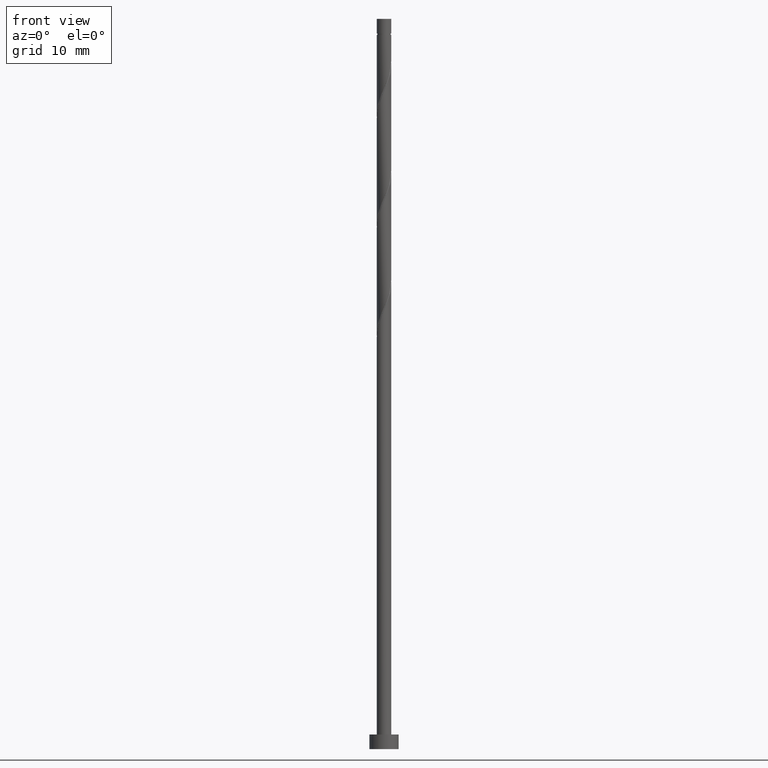
[diagram: clean part render]
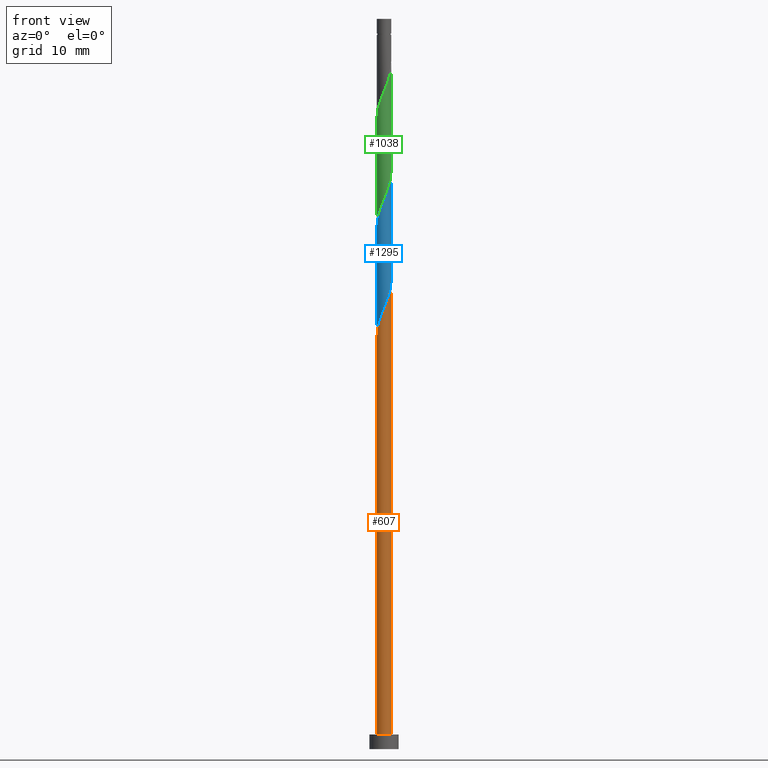
[diagram: same view with three faces highlighted in distinct colors, each labeled with its STEP entity id]
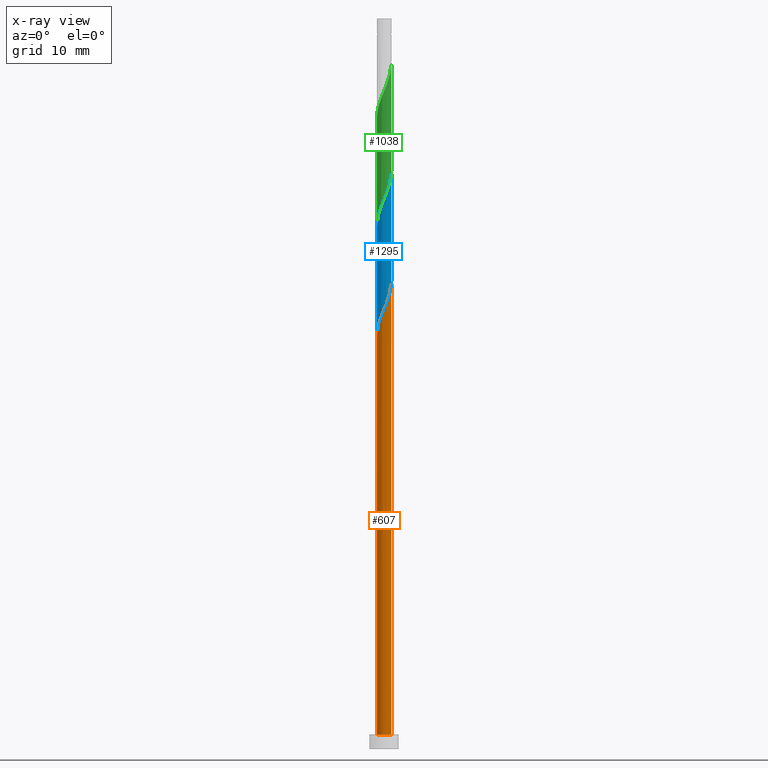
[diagram: x-ray of the same camera — body ghosted, the three highlighted faces saturated]
A machine part, front view with three faces highlighted in distinct colors.
The next image is the same camera in x-ray (body ghosted, the three faces saturated) — at least one of them is partly hidden behind the body in this view.
Their STEP definitions:

[orange] entity #607 — the highlighted cylindrical surface (edge-blend (fillet) strip) has radius 1 mm, axis along (-0, -0, -1).
#3 = CARTESIAN_POINT ( 'NONE',  ( -1.000000000000000000, 0.000000000000000000, 100.0000000000000000 ) ) ;
#44 = AXIS2_PLACEMENT_3D ( 'NONE', #1005, #1357, #780 ) ;
#46 = CARTESIAN_POINT ( 'NONE',  ( -0.9147317533455049388, -0.4408594147199554891, 57.38333333333333997 ) ) ;
#166 = CARTESIAN_POINT ( 'NONE',  ( 0.2753202675821132539, -0.9773893565945339645, 60.71666666666666856 ) ) ;
#175 = CARTESIAN_POINT ( 'NONE',  ( 0.9841041459904503741, -0.2502603323944278535, 63.21666666666666856 ) ) ;
#180 = VERTEX_POINT ( 'NONE', #524 ) ;
#182 = CARTESIAN_POINT ( 'NONE',  ( -0.07557042402773206380, -1.012610643405466249, 59.88333333333335418 ) ) ;
#234 = ORIENTED_EDGE ( 'NONE', *, *, #1203, .T. ) ;
#288 = CARTESIAN_POINT ( 'NONE',  ( -0.2464583156134444175, -0.9691533927428536144, 59.46666666666667567 ) ) ;
#336 = DIRECTION ( 'NONE',  ( -0.000000000000000000, -0.000000000000000000, -1.000000000000000000 ) ) ;
#359 = LINE ( 'NONE', #452, #816 ) ;
#372 = CARTESIAN_POINT ( 'NONE',  ( -0.8117578158769209740, -0.5839942194600308278, 57.80000000000000426 ) ) ;
#403 = ORIENTED_EDGE ( 'NONE', *, *, #1021, .F. ) ;
#441 = ORIENTED_EDGE ( 'NONE', *, *, #1466, .F. ) ;
#452 = CARTESIAN_POINT ( 'NONE',  ( 1.000000000000000000, 1.224646799147353207E-16, 100.0000000000000000 ) ) ;
#500 = CARTESIAN_POINT ( 'NONE',  ( 0.9972268124083832896, -0.07442233948093021634, 63.63333333333334707 ) ) ;
#512 = CARTESIAN_POINT ( 'NONE',  ( 0.9116327376541116800, -0.4110057805399693898, 62.79999999999999716 ) ) ;
#524 = CARTESIAN_POINT ( 'NONE',  ( 1.000000000000000000, 7.866774965686214893E-17, 63.81035135352636445 ) ) ;
#595 = VERTEX_POINT ( 'NONE', #653 ) ;
#607 = ADVANCED_FACE ( 'NONE', ( #783 ), #1343, .T. ) ;
#610 = CARTESIAN_POINT ( 'NONE',  ( 1.000000000000000000, 1.224646799147353207E-16, 2.000000000000000000 ) ) ;
#624 = CARTESIAN_POINT ( 'NONE',  ( 0.4341617696046363717, -0.9008349226211040950, 61.13333333333334707 ) ) ;
#634 = CARTESIAN_POINT ( 'NONE',  ( 0.5930032716271590454, -0.8242804886476744475, 61.55000000000001137 ) ) ;
#653 = CARTESIAN_POINT ( 'NONE',  ( -1.000000000000000000, 0.000000000000000000, 2.000000000000000000 ) ) ;
#712 = ORIENTED_EDGE ( 'NONE', *, *, #715, .T. ) ;
#715 = EDGE_CURVE ( 'NONE', #1293, #595, #1025, .T. ) ;
#742 = CARTESIAN_POINT ( 'NONE',  ( 0.09987492177719080322, -0.9949999999999999956, 60.30000000000000426 ) ) ;
#745 = VERTEX_POINT ( 'NONE', #610 ) ;
#780 = DIRECTION ( 'NONE',  ( 1.000000000000000000, 0.000000000000000000, 0.000000000000000000 ) ) ;
#783 = FACE_OUTER_BOUND ( 'NONE', #1328, .T. ) ;
#816 = VECTOR ( 'NONE', #336, 1000.000000000000000 ) ;
#849 = CARTESIAN_POINT ( 'NONE',  ( -0.9999999999999988898, -0.1381563937346808602, 56.64019839831190950 ) ) ;
#865 = CARTESIAN_POINT ( 'NONE',  ( 0.000000000000000000, 0.000000000000000000, 100.0000000000000000 ) ) ;
#881 = CIRCLE ( 'NONE', #44, 1.000000000000000000 ) ;
#957 = CARTESIAN_POINT ( 'NONE',  ( 1.000000000000000000, 7.866774965686214893E-17, 63.81035135352636445 ) ) ;
#962 = CARTESIAN_POINT ( 'NONE',  ( -0.5630650428037469180, -0.8264125831401736288, 58.63333333333333286 ) ) ;
#965 = CARTESIAN_POINT ( 'NONE',  ( 1.000000000000000444, -0.03726283816066764537, 63.72138669025336100 ) ) ;
#989 = DIRECTION ( 'NONE',  ( -0.000000000000000000, -0.000000000000000000, -1.000000000000000000 ) ) ;
#1005 = CARTESIAN_POINT ( 'NONE',  ( 0.000000000000000000, 0.000000000000000000, 2.000000000000000000 ) ) ;
#1021 = EDGE_CURVE ( 'NONE', #1293, #180, #1086, .T. ) ;
#1025 = LINE ( 'NONE', #3, #1435 ) ;
#1077 = CARTESIAN_POINT ( 'NONE',  ( 0.8391613293177730970, -0.5717512286855108705, 62.38333333333333997 ) ) ;
#1086 =( BOUNDED_CURVE ( )  B_SPLINE_CURVE ( 2, ( #1216, #849, #1307, #46, #372, #1189, #962, #1317, #288, #182, #742, #166, #624, #634, #1212, #1077, #512, #175, #500, #965, #957 ),
 .UNSPECIFIED., .F., .T. ) 
 B_SPLINE_CURVE_WITH_KNOTS ( ( 3, 2, 2, 2, 2, 2, 2, 2, 2, 2, 3 ),
 ( 0.05852626155789682205, 0.06944444444444441977, 0.08333333333333337034, 0.09722222222222220989, 0.1111111111111111605, 0.1250000000000000000, 0.1388888888888888395, 0.1527777777777777901, 0.1666666666666666297, 0.1805555555555555802, 0.1835262615578969192 ),
 .UNSPECIFIED. ) 
 CURVE ( )  GEOMETRIC_REPRESENTATION_ITEM ( )  RATIONAL_B_SPLINE_CURVE ( ( 0.9475153373969229520, 0.9410068908218436334, 0.9523809523809509958, 0.9379121457259110839, 0.9523809523809509958, 0.9379121457259110839, 0.9523809523809509958, 0.9379121457259110839, 0.9523809523809509958, 0.9379121457259110839, 0.9523809523809509958, 0.9379121457259110839, 0.9523809523809509958, 0.9379121457259110839, 0.9523809523809509958, 0.9379121457259110839, 0.9523809523809509958, 0.9379121457259110839, 0.9523809523809509958, 0.9492862072850182242, 0.9475153373969227300 ) ) 
 REPRESENTATION_ITEM ( '' )  );
#1113 = DIRECTION ( 'NONE',  ( -1.000000000000000000, 0.000000000000000000, 0.000000000000000000 ) ) ;
#1123 = DIRECTION ( 'NONE',  ( -0.000000000000000000, -0.000000000000000000, -1.000000000000000000 ) ) ;
#1176 = AXIS2_PLACEMENT_3D ( 'NONE', #865, #1123, #1113 ) ;
#1189 = CARTESIAN_POINT ( 'NONE',  ( -0.7087838784083370092, -0.7271290242001063886, 58.21666666666666856 ) ) ;
#1203 = EDGE_CURVE ( 'NONE', #595, #745, #881, .T. ) ;
#1212 = CARTESIAN_POINT ( 'NONE',  ( 0.7160823004724661267, -0.6980158586665925480, 61.96666666666666856 ) ) ;
#1216 = CARTESIAN_POINT ( 'NONE',  ( -0.9999999999999997780, -8.453207281310098825E-15, 56.31035135352637155 ) ) ;
#1265 = CARTESIAN_POINT ( 'NONE',  ( -0.9999999999999997780, -8.453207281310098825E-15, 56.31035135352637155 ) ) ;
#1293 = VERTEX_POINT ( 'NONE', #1265 ) ;
#1307 = CARTESIAN_POINT ( 'NONE',  ( -0.9625406160859104610, -0.2711375340762611774, 56.96666666666668277 ) ) ;
#1317 = CARTESIAN_POINT ( 'NONE',  ( -0.4173462071991567157, -0.9256961420802413132, 59.05000000000000426 ) ) ;
#1328 = EDGE_LOOP ( 'NONE', ( #441, #403, #712, #234 ) ) ;
#1343 = CYLINDRICAL_SURFACE ( 'NONE', #1176, 1.000000000000000000 ) ;
#1357 = DIRECTION ( 'NONE',  ( 0.000000000000000000, 0.000000000000000000, 1.000000000000000000 ) ) ;
#1435 = VECTOR ( 'NONE', #989, 1000.000000000000000 ) ;
#1466 = EDGE_CURVE ( 'NONE', #180, #745, #359, .T. ) ;

[blue] entity #1295 — the highlighted cylindrical surface (edge-blend (fillet) strip) has radius 1 mm, axis along (-0, -0, -1).
#11 = CARTESIAN_POINT ( 'NONE',  ( 0.9841041459904503741, -0.2502603323944278535, 78.21666666666668277 ) ) ;
#67 =( BOUNDED_CURVE ( )  B_SPLINE_CURVE ( 2, ( #1392, #482, #936, #1401, #262, #991, #860, #1324, #194, #875, #213, #664, #751, #1124, #184, #982, #1334, #11, #124, #1017, #1376 ),
 .UNSPECIFIED., .F., .T. ) 
 B_SPLINE_CURVE_WITH_KNOTS ( ( 3, 2, 2, 2, 2, 2, 2, 2, 2, 2, 3 ),
 ( 0.3085262615578962531, 0.3194444444444444198, 0.3333333333333333703, 0.3472222222222222099, 0.3611111111111111605, 0.3750000000000000000, 0.3888888888888888395, 0.4027777777777777901, 0.4166666666666666297, 0.4305555555555555802, 0.4335262615578967527 ),
 .UNSPECIFIED. ) 
 CURVE ( )  GEOMETRIC_REPRESENTATION_ITEM ( )  RATIONAL_B_SPLINE_CURVE ( ( 0.9475153373969236181, 0.9410068908218430783, 0.9523809523809509958, 0.9379121457259110839, 0.9523809523809509958, 0.9379121457259110839, 0.9523809523809509958, 0.9379121457259110839, 0.9523809523809509958, 0.9379121457259110839, 0.9523809523809509958, 0.9379121457259110839, 0.9523809523809509958, 0.9379121457259110839, 0.9523809523809509958, 0.9379121457259110839, 0.9523809523809509958, 0.9379121457259110839, 0.9523809523809509958, 0.9492862072850184463, 0.9475153373969230630 ) ) 
 REPRESENTATION_ITEM ( '' )  );
#78 = CARTESIAN_POINT ( 'NONE',  ( -0.09987492177719106690, -0.9949999999999999956, 60.30000000000000426 ) ) ;
#95 = CARTESIAN_POINT ( 'NONE',  ( -0.4341617696046366492, -0.9008349226211040950, 59.46666666666667567 ) ) ;
#124 = CARTESIAN_POINT ( 'NONE',  ( 0.9972268124083832896, -0.07442233948093021634, 78.63333333333332575 ) ) ;
#184 = CARTESIAN_POINT ( 'NONE',  ( 0.7160823004724661267, -0.6980158586665925480, 76.96666666666669698 ) ) ;
#189 = CARTESIAN_POINT ( 'NONE',  ( -0.7160823004724664598, -0.6980158586665924370, 58.63333333333332575 ) ) ;
#194 = CARTESIAN_POINT ( 'NONE',  ( -0.2464583156134444175, -0.9691533927428536144, 74.46666666666666856 ) ) ;
#209 = CARTESIAN_POINT ( 'NONE',  ( -0.9116327376541120131, -0.4110057805399687791, 57.80000000000000426 ) ) ;
#213 = CARTESIAN_POINT ( 'NONE',  ( 0.09987492177719080322, -0.9949999999999999956, 75.30000000000003979 ) ) ;
#235 = CARTESIAN_POINT ( 'NONE',  ( 1.000000000000000000, 1.224646799147353207E-16, 100.0000000000000000 ) ) ;
#262 = CARTESIAN_POINT ( 'NONE',  ( -0.8117578158769209740, -0.5839942194600308278, 72.80000000000002558 ) ) ;
#306 = CARTESIAN_POINT ( 'NONE',  ( -0.5930032716271594895, -0.8242804886476744475, 59.04999999999999005 ) ) ;
#313 = CARTESIAN_POINT ( 'NONE',  ( -0.8391613293177733190, -0.5717512286855107595, 58.21666666666667567 ) ) ;
#343 = DIRECTION ( 'NONE',  ( -0.000000000000000000, -0.000000000000000000, -1.000000000000000000 ) ) ;
#389 = CARTESIAN_POINT ( 'NONE',  ( 1.000000000000000000, 7.866774965686214893E-17, 78.81035135352634313 ) ) ;
#404 = EDGE_CURVE ( 'NONE', #1163, #932, #67, .T. ) ;
#415 = CARTESIAN_POINT ( 'NONE',  ( -1.000000000000000222, 1.930935673395703650E-16, 56.78964864647364408 ) ) ;
#433 = VERTEX_POINT ( 'NONE', #1367 ) ;
#469 = ORIENTED_EDGE ( 'NONE', *, *, #1089, .F. ) ;
#472 = FACE_OUTER_BOUND ( 'NONE', #668, .T. ) ;
#482 = CARTESIAN_POINT ( 'NONE',  ( -1.000000000000000888, -0.1381563937346738657, 71.64019839831189529 ) ) ;
#504 = AXIS2_PLACEMENT_3D ( 'NONE', #1381, #343, #1294 ) ;
#525 = CARTESIAN_POINT ( 'NONE',  ( 0.4173462071991564382, -0.9256961420802414242, 61.54999999999999716 ) ) ;
#532 =( BOUNDED_CURVE ( )  B_SPLINE_CURVE ( 2, ( #564, #1238, #870, #1013, #651, #1111, #765, #525, #1348, #1478, #78, #1341, #95, #306, #189, #313, #209, #790, #1470, #1452, #415 ),
 .UNSPECIFIED., .F., .T. ) 
 B_SPLINE_CURVE_WITH_KNOTS ( ( 3, 2, 2, 2, 2, 2, 2, 2, 2, 2, 3 ),
 ( 0.8085262615578966416, 0.8194444444444444198, 0.8333333333333333703, 0.8472222222222222099, 0.8611111111111111605, 0.8750000000000000000, 0.8888888888888888395, 0.9027777777777777901, 0.9166666666666666297, 0.9305555555555555802, 0.9335262615578967527 ),
 .UNSPECIFIED. ) 
 CURVE ( )  GEOMETRIC_REPRESENTATION_ITEM ( )  RATIONAL_B_SPLINE_CURVE ( ( 0.9475153373969250614, 0.9410068908218454098, 0.9523809523809528832, 0.9379121457259129713, 0.9523809523809528832, 0.9379121457259129713, 0.9523809523809528832, 0.9379121457259129713, 0.9523809523809528832, 0.9379121457259129713, 0.9523809523809528832, 0.9379121457259129713, 0.9523809523809528832, 0.9379121457259129713, 0.9523809523809528832, 0.9379121457259129713, 0.9523809523809528832, 0.9379121457259129713, 0.9523809523809528832, 0.9492862072850202226, 0.9475153373969248394 ) ) 
 REPRESENTATION_ITEM ( '' )  );
#564 = CARTESIAN_POINT ( 'NONE',  ( 1.000000000000000222, -4.290968163101563064E-16, 64.28964864647365118 ) ) ;
#598 = CARTESIAN_POINT ( 'NONE',  ( -1.000000000000000000, 0.000000000000000000, 100.0000000000000000 ) ) ;
#651 = CARTESIAN_POINT ( 'NONE',  ( 0.8117578158769208629, -0.5839942194600313830, 62.79999999999999716 ) ) ;
#664 = CARTESIAN_POINT ( 'NONE',  ( 0.2753202675821132539, -0.9773893565945339645, 75.71666666666664014 ) ) ;
#668 = EDGE_LOOP ( 'NONE', ( #1397, #1469, #827, #469 ) ) ;
#689 = DIRECTION ( 'NONE',  ( -0.000000000000000000, -0.000000000000000000, -1.000000000000000000 ) ) ;
#749 = EDGE_CURVE ( 'NONE', #1163, #433, #1048, .T. ) ;
#751 = CARTESIAN_POINT ( 'NONE',  ( 0.4341617696046363717, -0.9008349226211040950, 76.13333333333333997 ) ) ;
#765 = CARTESIAN_POINT ( 'NONE',  ( 0.5630650428037468069, -0.8264125831401737399, 61.96666666666666856 ) ) ;
#790 = CARTESIAN_POINT ( 'NONE',  ( -0.9841041459904508182, -0.2502603323944273539, 57.38333333333332575 ) ) ;
#798 = LINE ( 'NONE', #235, #1129 ) ;
#827 = ORIENTED_EDGE ( 'NONE', *, *, #749, .T. ) ;
#860 = CARTESIAN_POINT ( 'NONE',  ( -0.5630650428037469180, -0.8264125831401736288, 73.63333333333332575 ) ) ;
#870 = CARTESIAN_POINT ( 'NONE',  ( 0.9625406160859105720, -0.2711375340762611219, 63.63333333333333286 ) ) ;
#875 = CARTESIAN_POINT ( 'NONE',  ( -0.07557042402773206380, -1.012610643405466249, 74.88333333333333997 ) ) ;
#929 = DIRECTION ( 'NONE',  ( -0.000000000000000000, -0.000000000000000000, -1.000000000000000000 ) ) ;
#932 = VERTEX_POINT ( 'NONE', #389 ) ;
#936 = CARTESIAN_POINT ( 'NONE',  ( -0.9625406160859104610, -0.2711375340762611774, 71.96666666666669698 ) ) ;
#982 = CARTESIAN_POINT ( 'NONE',  ( 0.8391613293177730970, -0.5717512286855108705, 77.38333333333333997 ) ) ;
#991 = CARTESIAN_POINT ( 'NONE',  ( -0.7087838784083370092, -0.7271290242001063886, 73.21666666666666856 ) ) ;
#1013 = CARTESIAN_POINT ( 'NONE',  ( 0.9147317533455048277, -0.4408594147199561553, 63.21666666666667567 ) ) ;
#1017 = CARTESIAN_POINT ( 'NONE',  ( 0.9999999999999997780, -0.03726283816067007398, 78.72138669025329705 ) ) ;
#1047 = CYLINDRICAL_SURFACE ( 'NONE', #504, 1.000000000000000000 ) ;
#1048 = LINE ( 'NONE', #598, #1222 ) ;
#1089 = EDGE_CURVE ( 'NONE', #1220, #433, #532, .T. ) ;
#1111 = CARTESIAN_POINT ( 'NONE',  ( 0.7087838784083367871, -0.7271290242001067217, 62.38333333333332575 ) ) ;
#1119 = CARTESIAN_POINT ( 'NONE',  ( -1.000000000000000000, -8.581936326203144864E-17, 71.31035135352634313 ) ) ;
#1124 = CARTESIAN_POINT ( 'NONE',  ( 0.5930032716271590454, -0.8242804886476744475, 76.55000000000001137 ) ) ;
#1129 = VECTOR ( 'NONE', #689, 1000.000000000000000 ) ;
#1163 = VERTEX_POINT ( 'NONE', #1119 ) ;
#1220 = VERTEX_POINT ( 'NONE', #1248 ) ;
#1222 = VECTOR ( 'NONE', #929, 1000.000000000000000 ) ;
#1238 = CARTESIAN_POINT ( 'NONE',  ( 0.9999999999999995559, -0.1381563937346788618, 63.95980160168808482 ) ) ;
#1248 = CARTESIAN_POINT ( 'NONE',  ( 1.000000000000000222, -4.290968163101563064E-16, 64.28964864647365118 ) ) ;
#1294 = DIRECTION ( 'NONE',  ( -1.000000000000000000, 0.000000000000000000, 0.000000000000000000 ) ) ;
#1295 = ADVANCED_FACE ( 'NONE', ( #472 ), #1047, .T. ) ;
#1324 = CARTESIAN_POINT ( 'NONE',  ( -0.4173462071991567157, -0.9256961420802413132, 74.05000000000002558 ) ) ;
#1334 = CARTESIAN_POINT ( 'NONE',  ( 0.9116327376541116800, -0.4110057805399693898, 77.80000000000001137 ) ) ;
#1341 = CARTESIAN_POINT ( 'NONE',  ( -0.2753202675821139200, -0.9773893565945336315, 59.88333333333334707 ) ) ;
#1348 = CARTESIAN_POINT ( 'NONE',  ( 0.2464583156134441955, -0.9691533927428537254, 61.13333333333333997 ) ) ;
#1367 = CARTESIAN_POINT ( 'NONE',  ( -1.000000000000000222, 1.930935673395703404E-16, 56.78964864647364408 ) ) ;
#1376 = CARTESIAN_POINT ( 'NONE',  ( 1.000000000000000000, 7.866774965686214893E-17, 78.81035135352634313 ) ) ;
#1381 = CARTESIAN_POINT ( 'NONE',  ( 0.000000000000000000, 0.000000000000000000, 100.0000000000000000 ) ) ;
#1392 = CARTESIAN_POINT ( 'NONE',  ( -1.000000000000000000, -8.581936326203146096E-17, 71.31035135352634313 ) ) ;
#1397 = ORIENTED_EDGE ( 'NONE', *, *, #1474, .F. ) ;
#1401 = CARTESIAN_POINT ( 'NONE',  ( -0.9147317533455049388, -0.4408594147199554891, 72.38333333333331154 ) ) ;
#1452 = CARTESIAN_POINT ( 'NONE',  ( -1.000000000000000444, -0.03726283816067003929, 56.87861330974668306 ) ) ;
#1469 = ORIENTED_EDGE ( 'NONE', *, *, #404, .F. ) ;
#1470 = CARTESIAN_POINT ( 'NONE',  ( -0.9972268124083832896, -0.07442233948093023022, 56.96666666666666856 ) ) ;
#1474 = EDGE_CURVE ( 'NONE', #932, #1220, #798, .T. ) ;
#1478 = CARTESIAN_POINT ( 'NONE',  ( 0.07557042402773136991, -1.012610643405466471, 60.71666666666666146 ) ) ;

[green] entity #1038 — the highlighted cylindrical surface (edge-blend (fillet) strip) has radius 1 mm, axis along (-0, -0, -1).
#23 = CARTESIAN_POINT ( 'NONE',  ( 0.2464583156134441955, -0.9691533927428537254, 76.13333333333332575 ) ) ;
#48 = CARTESIAN_POINT ( 'NONE',  ( 0.7087838784083367871, -0.7271290242001067217, 77.38333333333332575 ) ) ;
#111 = CARTESIAN_POINT ( 'NONE',  ( -1.000000000000000000, 0.000000000000000000, 100.0000000000000000 ) ) ;
#113 = CARTESIAN_POINT ( 'NONE',  ( -0.07557042402773206380, -1.012610643405466249, 89.88333333333333997 ) ) ;
#116 = ORIENTED_EDGE ( 'NONE', *, *, #1486, .T. ) ;
#119 = DIRECTION ( 'NONE',  ( -0.000000000000000000, -0.000000000000000000, -1.000000000000000000 ) ) ;
#128 = CARTESIAN_POINT ( 'NONE',  ( 0.4173462071991564382, -0.9256961420802414242, 76.54999999999999716 ) ) ;
#135 = EDGE_LOOP ( 'NONE', ( #809, #1263, #116, #1269 ) ) ;
#136 = CARTESIAN_POINT ( 'NONE',  ( -0.9841041459904508182, -0.2502603323944273539, 72.38333333333333997 ) ) ;
#162 = LINE ( 'NONE', #369, #547 ) ;
#172 = CARTESIAN_POINT ( 'NONE',  ( 1.000000000000000888, -0.1381563937346747262, 78.95980160168809903 ) ) ;
#238 = CARTESIAN_POINT ( 'NONE',  ( -0.4173462071991567157, -0.9256961420802413132, 89.04999999999999716 ) ) ;
#246 = CARTESIAN_POINT ( 'NONE',  ( 0.9116327376541116800, -0.4110057805399693898, 92.80000000000001137 ) ) ;
#252 = CARTESIAN_POINT ( 'NONE',  ( 0.5630650428037468069, -0.8264125831401737399, 76.96666666666666856 ) ) ;
#256 = CARTESIAN_POINT ( 'NONE',  ( 1.000000000000000000, 7.866774965686214893E-17, 93.81035135352635734 ) ) ;
#259 = CARTESIAN_POINT ( 'NONE',  ( -0.8391613293177733190, -0.5717512286855107595, 73.21666666666664014 ) ) ;
#268 = EDGE_CURVE ( 'NONE', #772, #797, #162, .T. ) ;
#300 = EDGE_CURVE ( 'NONE', #797, #348, #1094, .T. ) ;
#328 = VECTOR ( 'NONE', #119, 1000.000000000000000 ) ;
#345 = CARTESIAN_POINT ( 'NONE',  ( 1.000000000000000222, -0.03726283816066728455, 93.72138669025336810 ) ) ;
#348 = VERTEX_POINT ( 'NONE', #803 ) ;
#354 = CARTESIAN_POINT ( 'NONE',  ( 0.4341617696046363717, -0.9008349226211040950, 91.13333333333332575 ) ) ;
#363 = CARTESIAN_POINT ( 'NONE',  ( -0.2753202675821139200, -0.9773893565945336315, 74.88333333333332575 ) ) ;
#364 = CARTESIAN_POINT ( 'NONE',  ( 0.8117578158769208629, -0.5839942194600313830, 77.80000000000002558 ) ) ;
#369 = CARTESIAN_POINT ( 'NONE',  ( 1.000000000000000000, 1.224646799147353207E-16, 100.0000000000000000 ) ) ;
#386 = CARTESIAN_POINT ( 'NONE',  ( 1.000000000000000222, -4.290968163101563064E-16, 79.28964864647366539 ) ) ;
#400 = DIRECTION ( 'NONE',  ( -1.000000000000000000, 0.000000000000000000, 0.000000000000000000 ) ) ;
#454 = CARTESIAN_POINT ( 'NONE',  ( -1.000000000000000444, -0.1381563937346758919, 86.64019839831189529 ) ) ;
#470 = CARTESIAN_POINT ( 'NONE',  ( -0.5930032716271594895, -0.8242804886476744475, 74.05000000000001137 ) ) ;
#481 = CARTESIAN_POINT ( 'NONE',  ( 0.2753202675821132539, -0.9773893565945339645, 90.71666666666666856 ) ) ;
#487 = CARTESIAN_POINT ( 'NONE',  ( 0.07557042402773136991, -1.012610643405466471, 75.71666666666666856 ) ) ;
#547 = VECTOR ( 'NONE', #724, 1000.000000000000000 ) ;
#579 = CARTESIAN_POINT ( 'NONE',  ( -0.4341617696046366492, -0.9008349226211040950, 74.46666666666665435 ) ) ;
#627 = CARTESIAN_POINT ( 'NONE',  ( 0.9625406160859105720, -0.2711375340762611219, 78.63333333333331154 ) ) ;
#703 = CARTESIAN_POINT ( 'NONE',  ( -0.9147317533455049388, -0.4408594147199554891, 87.38333333333331154 ) ) ;
#709 = CARTESIAN_POINT ( 'NONE',  ( -0.9625406160859104610, -0.2711375340762611774, 86.96666666666666856 ) ) ;
#721 = CARTESIAN_POINT ( 'NONE',  ( -0.8117578158769209740, -0.5839942194600308278, 87.80000000000001137 ) ) ;
#724 = DIRECTION ( 'NONE',  ( -0.000000000000000000, -0.000000000000000000, -1.000000000000000000 ) ) ;
#728 = EDGE_CURVE ( 'NONE', #1137, #772, #1286, .T. ) ;
#772 = VERTEX_POINT ( 'NONE', #800 ) ;
#797 = VERTEX_POINT ( 'NONE', #1291 ) ;
#800 = CARTESIAN_POINT ( 'NONE',  ( 1.000000000000000000, 7.866774965686214893E-17, 93.81035135352635734 ) ) ;
#803 = CARTESIAN_POINT ( 'NONE',  ( -1.000000000000000000, -2.603187352281614199E-15, 71.78964864647365118 ) ) ;
#809 = ORIENTED_EDGE ( 'NONE', *, *, #268, .F. ) ;
#817 = CARTESIAN_POINT ( 'NONE',  ( 0.9841041459904503741, -0.2502603323944278535, 93.21666666666666856 ) ) ;
#820 = CARTESIAN_POINT ( 'NONE',  ( -0.7160823004724664598, -0.6980158586665924370, 73.63333333333332575 ) ) ;
#873 = CARTESIAN_POINT ( 'NONE',  ( -1.000000000000000000, -8.581936326203144864E-17, 86.31035135352635734 ) ) ;
#939 = CARTESIAN_POINT ( 'NONE',  ( -0.9972268124083832896, -0.07442233948093023022, 71.96666666666668277 ) ) ;
#943 = CARTESIAN_POINT ( 'NONE',  ( 0.9147317533455048277, -0.4408594147199561553, 78.21666666666665435 ) ) ;
#951 = DIRECTION ( 'NONE',  ( -0.000000000000000000, -0.000000000000000000, -1.000000000000000000 ) ) ;
#972 = CYLINDRICAL_SURFACE ( 'NONE', #1053, 1.000000000000000000 ) ;
#996 = CARTESIAN_POINT ( 'NONE',  ( -1.000000000000000000, -8.581936326203144864E-17, 86.31035135352635734 ) ) ;
#1029 = CARTESIAN_POINT ( 'NONE',  ( -1.000000000000000000, -2.603187352281614199E-15, 71.78964864647365118 ) ) ;
#1031 = LINE ( 'NONE', #111, #328 ) ;
#1038 = ADVANCED_FACE ( 'NONE', ( #1084 ), #972, .T. ) ;
#1053 = AXIS2_PLACEMENT_3D ( 'NONE', #1437, #951, #400 ) ;
#1084 = FACE_OUTER_BOUND ( 'NONE', #135, .T. ) ;
#1094 =( BOUNDED_CURVE ( )  B_SPLINE_CURVE ( 2, ( #386, #172, #627, #943, #364, #48, #252, #128, #23, #487, #1396, #363, #579, #470, #820, #259, #1171, #136, #939, #1270, #1029 ),
 .UNSPECIFIED., .F., .T. ) 
 B_SPLINE_CURVE_WITH_KNOTS ( ( 3, 2, 2, 2, 2, 2, 2, 2, 2, 2, 3 ),
 ( 0.5585262615578963086, 0.5694444444444444198, 0.5833333333333333703, 0.5972222222222222099, 0.6111111111111111605, 0.6250000000000000000, 0.6388888888888888395, 0.6527777777777777901, 0.6666666666666666297, 0.6805555555555555802, 0.6835262615578967527 ),
 .UNSPECIFIED. ) 
 CURVE ( )  GEOMETRIC_REPRESENTATION_ITEM ( )  RATIONAL_B_SPLINE_CURVE ( ( 0.9475153373969255055, 0.9410068908218450767, 0.9523809523809528832, 0.9379121457259129713, 0.9523809523809528832, 0.9379121457259129713, 0.9523809523809528832, 0.9379121457259129713, 0.9523809523809528832, 0.9379121457259129713, 0.9523809523809528832, 0.9379121457259129713, 0.9523809523809528832, 0.9379121457259129713, 0.9523809523809528832, 0.9379121457259129713, 0.9523809523809528832, 0.9379121457259129713, 0.9523809523809528832, 0.9492862072850202226, 0.9475153373969248394 ) ) 
 REPRESENTATION_ITEM ( '' )  );
#1137 = VERTEX_POINT ( 'NONE', #996 ) ;
#1151 = CARTESIAN_POINT ( 'NONE',  ( 0.9972268124083832896, -0.07442233948093021634, 93.63333333333335418 ) ) ;
#1160 = CARTESIAN_POINT ( 'NONE',  ( 0.5930032716271590454, -0.8242804886476744475, 91.54999999999999716 ) ) ;
#1168 = CARTESIAN_POINT ( 'NONE',  ( 0.7160823004724661267, -0.6980158586665925480, 91.96666666666669698 ) ) ;
#1171 = CARTESIAN_POINT ( 'NONE',  ( -0.9116327376541120131, -0.4110057805399687791, 72.80000000000002558 ) ) ;
#1175 = CARTESIAN_POINT ( 'NONE',  ( -0.5630650428037469180, -0.8264125831401736288, 88.63333333333335418 ) ) ;
#1263 = ORIENTED_EDGE ( 'NONE', *, *, #728, .F. ) ;
#1269 = ORIENTED_EDGE ( 'NONE', *, *, #300, .F. ) ;
#1270 = CARTESIAN_POINT ( 'NONE',  ( -1.000000000000000444, -0.03726283816067003929, 71.87861330974669727 ) ) ;
#1286 =( BOUNDED_CURVE ( )  B_SPLINE_CURVE ( 2, ( #873, #454, #709, #703, #721, #1383, #1175, #238, #1375, #113, #1400, #481, #354, #1160, #1168, #1296, #246, #817, #1151, #345, #256 ),
 .UNSPECIFIED., .F., .T. ) 
 B_SPLINE_CURVE_WITH_KNOTS ( ( 3, 2, 2, 2, 2, 2, 2, 2, 2, 2, 3 ),
 ( 0.5585262615578964196, 0.5694444444444444198, 0.5833333333333332593, 0.5972222222222222099, 0.6111111111111111605, 0.6250000000000000000, 0.6388888888888888395, 0.6527777777777777901, 0.6666666666666667407, 0.6805555555555555802, 0.6835262615578969747 ),
 .UNSPECIFIED. ) 
 CURVE ( )  GEOMETRIC_REPRESENTATION_ITEM ( )  RATIONAL_B_SPLINE_CURVE ( ( 0.9475153373969233961, 0.9410068908218433004, 0.9523809523809509958, 0.9379121457259110839, 0.9523809523809509958, 0.9379121457259110839, 0.9523809523809509958, 0.9379121457259110839, 0.9523809523809509958, 0.9379121457259110839, 0.9523809523809509958, 0.9379121457259110839, 0.9523809523809509958, 0.9379121457259110839, 0.9523809523809509958, 0.9379121457259110839, 0.9523809523809509958, 0.9379121457259110839, 0.9523809523809509958, 0.9492862072850182242, 0.9475153373969227300 ) ) 
 REPRESENTATION_ITEM ( '' )  );
#1291 = CARTESIAN_POINT ( 'NONE',  ( 1.000000000000000222, -4.290968163101563064E-16, 79.28964864647366539 ) ) ;
#1296 = CARTESIAN_POINT ( 'NONE',  ( 0.8391613293177730970, -0.5717512286855108705, 92.38333333333331154 ) ) ;
#1375 = CARTESIAN_POINT ( 'NONE',  ( -0.2464583156134444175, -0.9691533927428536144, 89.46666666666669698 ) ) ;
#1383 = CARTESIAN_POINT ( 'NONE',  ( -0.7087838784083370092, -0.7271290242001063886, 88.21666666666666856 ) ) ;
#1396 = CARTESIAN_POINT ( 'NONE',  ( -0.09987492177719106690, -0.9949999999999999956, 75.30000000000002558 ) ) ;
#1400 = CARTESIAN_POINT ( 'NONE',  ( 0.09987492177719080322, -0.9949999999999999956, 90.29999999999999716 ) ) ;
#1437 = CARTESIAN_POINT ( 'NONE',  ( 0.000000000000000000, 0.000000000000000000, 100.0000000000000000 ) ) ;
#1486 = EDGE_CURVE ( 'NONE', #1137, #348, #1031, .T. ) ;